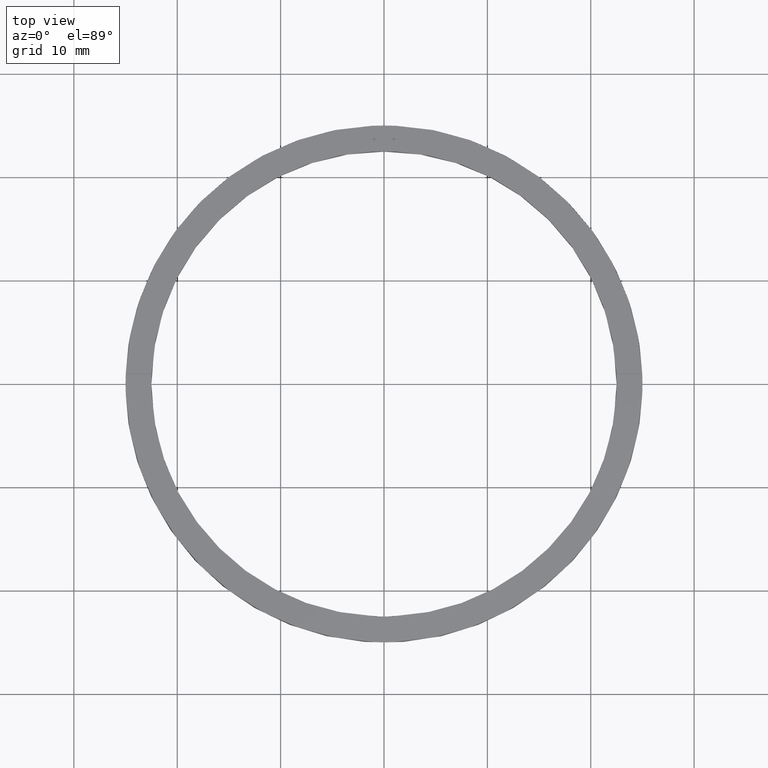
[diagram: clean part render]
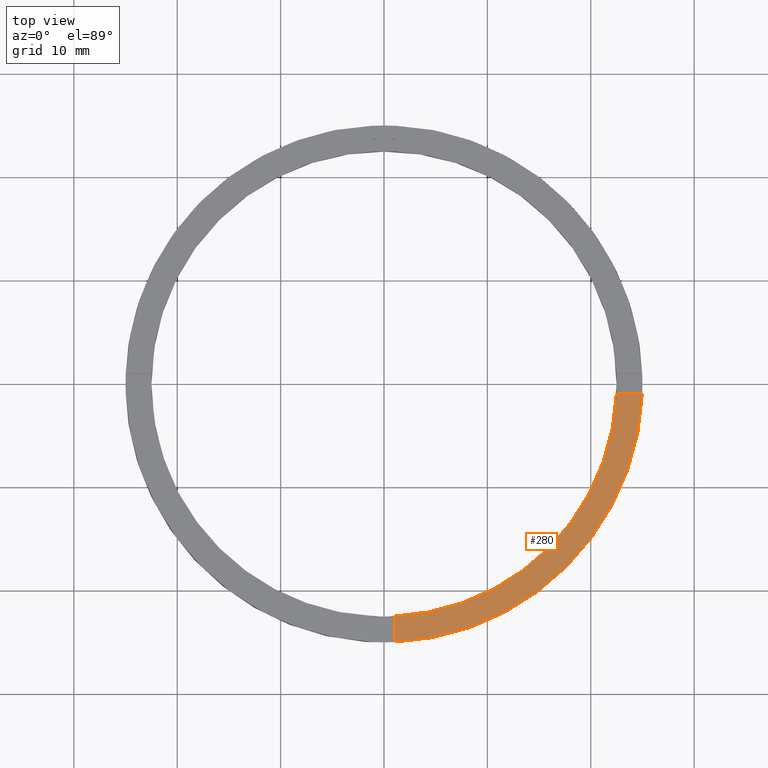
[diagram: same view with one face highlighted and labeled with its STEP entity id]
A machine part, top view. The second image highlights one B-rep face of the part: STEP entity #280.
In plain terms, the highlighted planar face has unit normal (0, 0, 1).
Its self-contained STEP definition (entity closure, byte-faithful):
#32 = CARTESIAN_POINT ( 'NONE',  ( 0.000000000000000000, 0.000000000000000000, 2.500000000000000000 ) ) ;
#68 = CARTESIAN_POINT ( 'NONE',  ( 22.47776679298901925, -1.000000000000157652, 2.500000000000000000 ) ) ;
#71 = CARTESIAN_POINT ( 'NONE',  ( 0.9999999999998382405, -15.00000000000018119, 2.500000000000000000 ) ) ;
#90 = AXIS2_PLACEMENT_3D ( 'NONE', #32, #679, #612 ) ;
#152 = EDGE_CURVE ( 'NONE', #586, #703, #233, .T. ) ;
#179 = VECTOR ( 'NONE', #658, 1000.000000000000000 ) ;
#182 = ORIENTED_EDGE ( 'NONE', *, *, #481, .F. ) ;
#233 = CIRCLE ( 'NONE', #526, 22.50000000000000355 ) ;
#236 = CARTESIAN_POINT ( 'NONE',  ( 0.000000000000000000, 0.000000000000000000, 2.500000000000000000 ) ) ;
#280 = ADVANCED_FACE ( 'NONE', ( #669 ), #383, .T. ) ;
#290 = DIRECTION ( 'NONE',  ( 0.000000000000000000, 0.000000000000000000, 1.000000000000000000 ) ) ;
#297 = ORIENTED_EDGE ( 'NONE', *, *, #152, .F. ) ;
#311 = ORIENTED_EDGE ( 'NONE', *, *, #621, .T. ) ;
#316 = DIRECTION ( 'NONE',  ( -1.301042606982605321E-16, 1.000000000000000000, -0.000000000000000000 ) ) ;
#370 = AXIS2_PLACEMENT_3D ( 'NONE', #394, #629, #482 ) ;
#383 = PLANE ( 'NONE',  #370 ) ;
#394 = CARTESIAN_POINT ( 'NONE',  ( 0.000000000000000000, 0.000000000000000000, 2.500000000000000000 ) ) ;
#439 = VECTOR ( 'NONE', #316, 1000.000000000000000 ) ;
#466 = CIRCLE ( 'NONE', #90, 25.00000000000000000 ) ;
#481 = EDGE_CURVE ( 'NONE', #763, #586, #702, .T. ) ;
#482 = DIRECTION ( 'NONE',  ( 1.000000000000000000, 0.000000000000000000, -0.000000000000000000 ) ) ;
#513 = CARTESIAN_POINT ( 'NONE',  ( 0.9999999999998395728, -24.97999199359360034, 2.500000000000000000 ) ) ;
#514 = EDGE_CURVE ( 'NONE', #703, #692, #691, .T. ) ;
#526 = AXIS2_PLACEMENT_3D ( 'NONE', #236, #290, #527 ) ;
#527 = DIRECTION ( 'NONE',  ( 1.000000000000000000, 0.000000000000000000, 0.000000000000000000 ) ) ;
#575 = ORIENTED_EDGE ( 'NONE', *, *, #514, .F. ) ;
#582 = CARTESIAN_POINT ( 'NONE',  ( 0.9999999999998391287, -22.47776679298903346, 2.500000000000000000 ) ) ;
#586 = VERTEX_POINT ( 'NONE', #582 ) ;
#612 = DIRECTION ( 'NONE',  ( 1.000000000000000000, 0.000000000000000000, 0.000000000000000000 ) ) ;
#621 = EDGE_CURVE ( 'NONE', #763, #692, #466, .T. ) ;
#629 = DIRECTION ( 'NONE',  ( 0.000000000000000000, 0.000000000000000000, 1.000000000000000000 ) ) ;
#650 = CARTESIAN_POINT ( 'NONE',  ( 14.99999999999999645, -1.000000000000157874, 2.500000000000000000 ) ) ;
#658 = DIRECTION ( 'NONE',  ( 1.000000000000000000, 4.336808689942018352E-17, 0.000000000000000000 ) ) ;
#669 = FACE_OUTER_BOUND ( 'NONE', #743, .T. ) ;
#679 = DIRECTION ( 'NONE',  ( 0.000000000000000000, 0.000000000000000000, 1.000000000000000000 ) ) ;
#691 = LINE ( 'NONE', #650, #179 ) ;
#692 = VERTEX_POINT ( 'NONE', #761 ) ;
#702 = LINE ( 'NONE', #71, #439 ) ;
#703 = VERTEX_POINT ( 'NONE', #68 ) ;
#743 = EDGE_LOOP ( 'NONE', ( #575, #297, #182, #311 ) ) ;
#761 = CARTESIAN_POINT ( 'NONE',  ( 24.97999199359358968, -1.000000000000157430, 2.500000000000000000 ) ) ;
#763 = VERTEX_POINT ( 'NONE', #513 ) ;